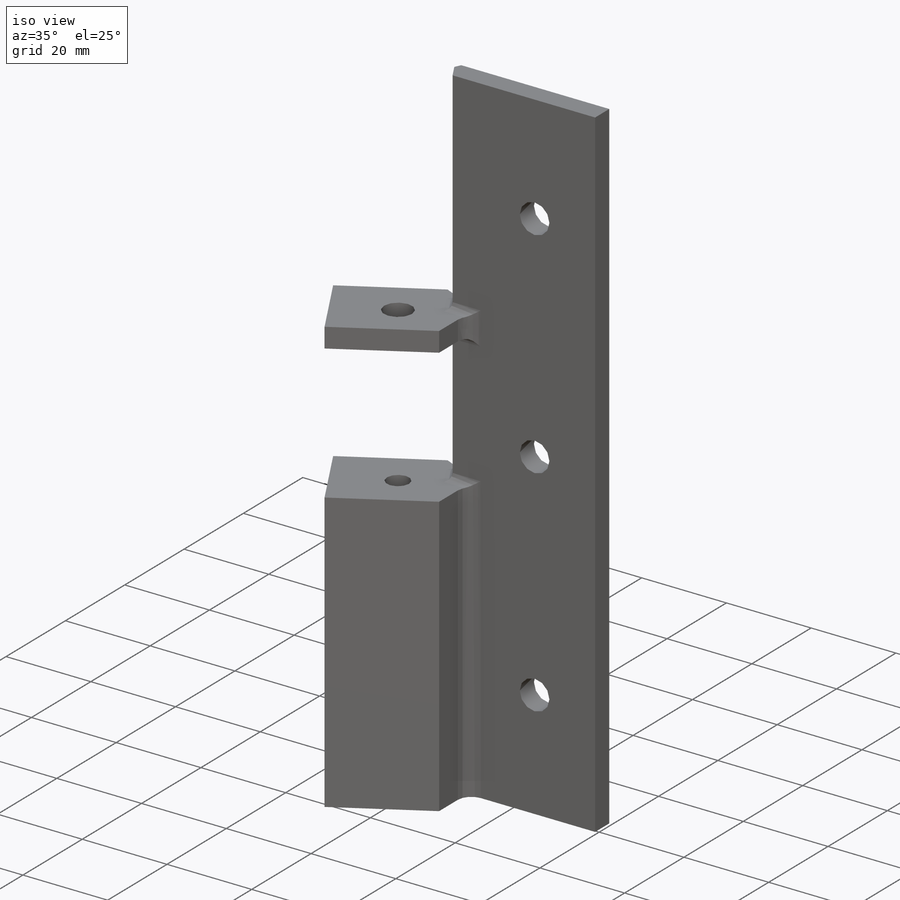
[diagram: iso view]
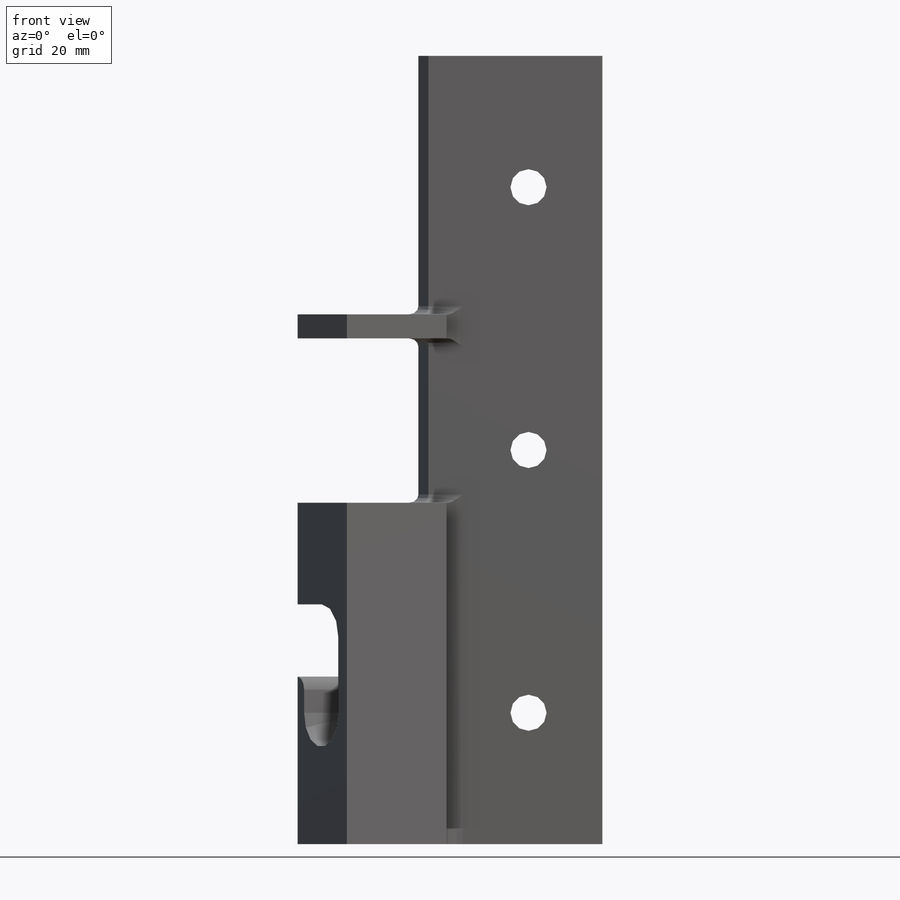
[diagram: front view]
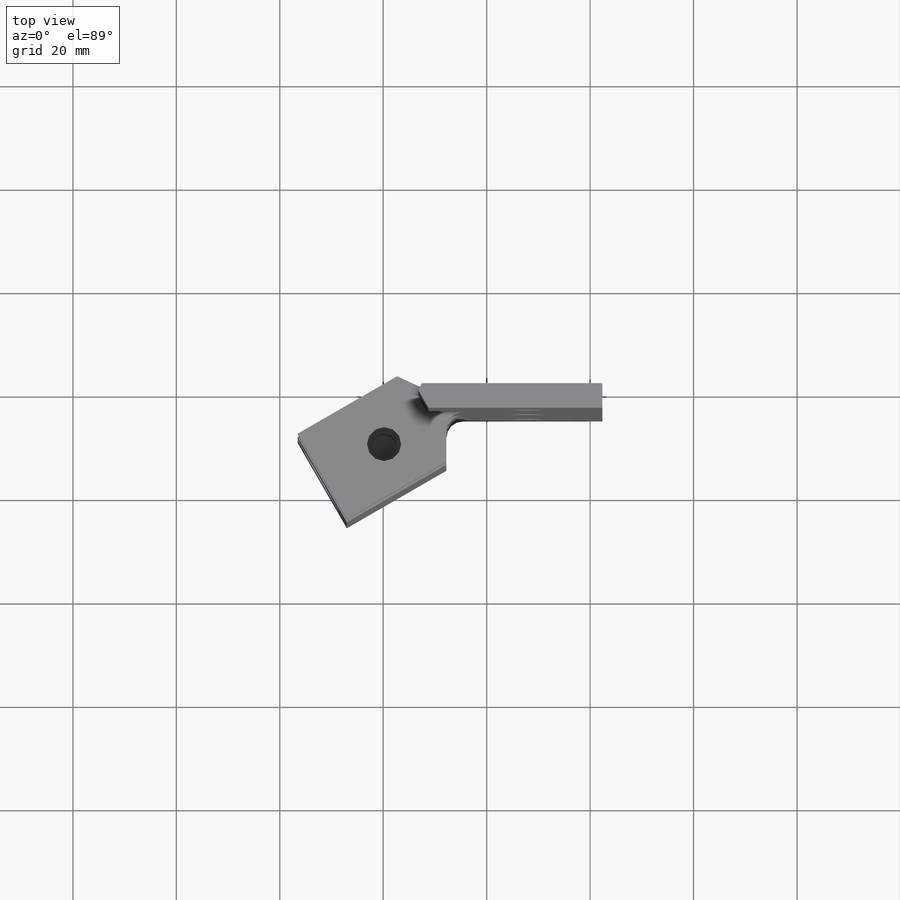
[diagram: top view]
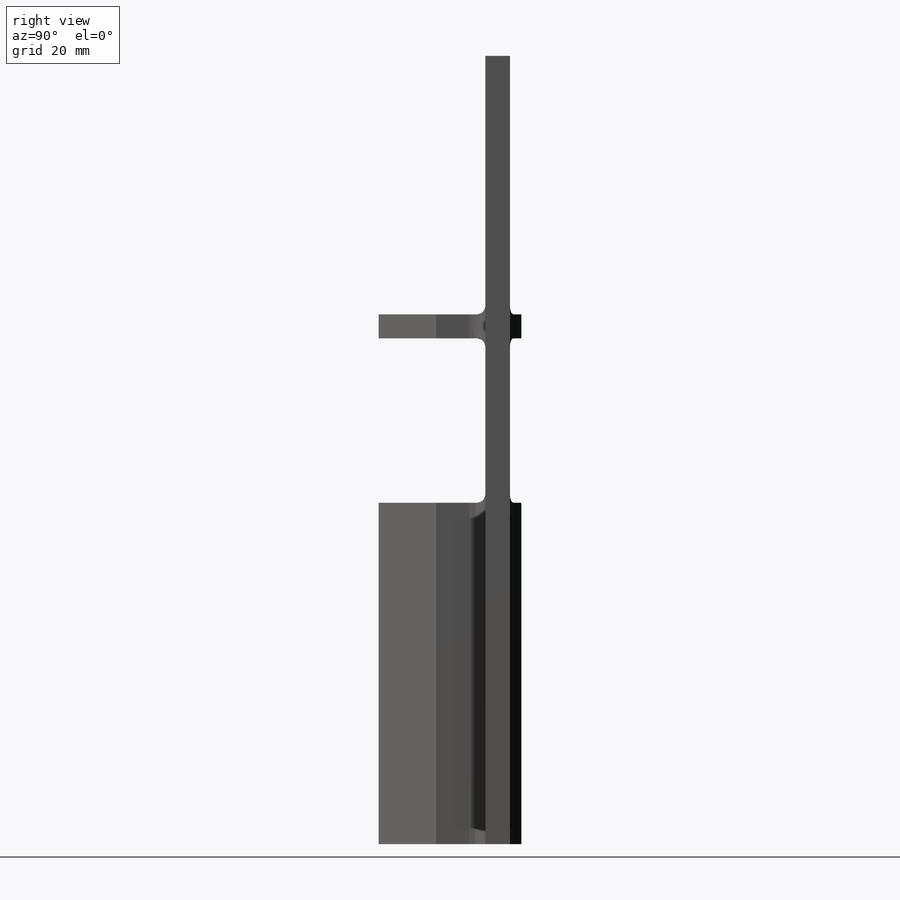
[diagram: right view]
SOLIDWORKS PART (.sldprt)
format: sldprt  version: not decoded by parser v0  size: 606,720 bytes
history: native  units: mm
features: sketch x18, cut_extrude x9, extrude x5, fillet x4, hole x2, plane x2, material x1, move_body x1 (+13 scaffold rows collapsed)
feature tree (55):
  scaffold x13  (default folders/planes/origin — collapsed)
  material  "AISI 304"
  sketch  "Sketch1"  dims[D1=152.4mm D2=34.925mm D3=76.2mm D4=~13.49375mm]
  extrude  "Boss-Extrude1"  Depth=4.7625mm
  sketch  "Sketch2"  dims[D1=152.4mm D2=14.2875mm]
  extrude  "Boss-Extrude2"  Depth=4.7625mm
  hole  "1/4 Clearance Hole1"  Diameter=6.985mm Depth=4.7625mm
  sketch  "Sketch3"  dims[D1=50.8mm D2=50.8mm D3=25.4mm D4=19.05mm D5=19.05mm D6=19.05mm]
  sketch  "Sketch4"  dims[hole-wizard template sketch: 59 standard entries collapsed; hole parameters kept: c18.Thru Hole Dia.=6.985mm c18.Thru Hole Depth=4.7625mm]
  plane  "Plane1"
  sketch  "Sketch5"  dims[D1=19.05mm D2=19.05mm]
  extrude  "Boss-Extrude3"  Depth=15.875mm
  sketch  "Sketch6"
  extrude  "Boss-Extrude4"  [1 undecoded]
  sketch  "Sketch8"  dims[D1=~49.974627mm D2=~15.719304mm]
  cut_extrude  "Cut-Extrude2"  [1 undecoded]
  sketch  "Sketch7"  dims[c1.D3=6.604mm c1.D2=25.4mm c2.D2=30.0deg c2.D4=~7.11515mm c2.D5=~10.100564mm c2.D1=4.7625mm]
  cut_extrude  "Cut-Extrude1"  Depth=4.7625mm
  sketch  "Sketch9"  dims[D1=31.7881mm D2=4.6355mm D3=~15.719304mm]
  cut_extrude  "Cut-Extrude3"  [1 undecoded]
  sketch  "Sketch11"  dims[D1=12.7mm D2=31.7881mm D3=4.6355mm]
  fillet  "Fillet5"  [1 undecoded]
  fillet  "Fillet4"  [1 undecoded]
  cut_extrude  "Cut-Extrude5"  [1 undecoded]
  cut_extrude  "Cut-Extrude9"  [1 undecoded]
  sketch  "Sketch17"
  cut_extrude  "Cut-Extrude8"  [1 undecoded]
  sketch  "Sketch16"  dims[c1.D1=~49.974627mm c1.D2=6.985mm c1.D3=31.7881mm c2.D1=2.54mm c2.D2=1.905mm c2.D3=2.54mm c2.D4=2.54mm c2.D5=~52.529892mm c2.D6=1.905mm c3.D1=1.5875mm]
  fillet  "Fillet2"  [1 undecoded]
  cut_extrude  "Cut-Extrude6"  [1 undecoded]
  sketch  "Sketch12"  dims[c1.D2=6.604mm c1.D5=6.604mm c1.D1=25.4mm c1.D3=13.97mm c1.D4=6.985mm c2.D5=9.144mm c2.D3=6.985mm c2.D4=2.54mm c2.D6=13.97mm c2.D7=15.748mm c2.D1=7.3025mm c3.D1=2.54mm]
  cut_extrude  "Cut-Extrude7"  [1 undecoded]
  sketch  "Sketch15"  dims[c1.D1=~49.974627mm c1.D2=12.7mm c2.D1=1.5875mm c3.D1=3.175mm]
  fillet  "Fillet3"  Radius=6.35mm
  hole  "#5 (0.2055) Diameter Hole1"  Diameter=5.2197mm Depth=11.4808mm
  sketch  "Sketch13"  dims[c1.D1=12.7mm c2.D1=30.0deg c2.D2=8.89mm c3.D1=~17.414327mm c4.D1=30.0deg c4.D2=4.7625mm c4.D3=~7.11515mm c4.D4=~10.100564mm c5.D3=4.7625mm]
  sketch  "Sketch14"  dims[hole-wizard template sketch: 46 standard entries collapsed; hole parameters kept: c15.Hole Dia.=5.2197mm c15.Hole Depth=11.4808mm c15.D3=~14.816244mm c15.Drill Angle=118.0deg]
  plane  "Plane2"  Offset=2.54mm
  move_body  "Body-Move/Copy1"
  sketch  "Sketch18"
  extrude  "Boss-Extrude5"  Depth=6.35mm
  sketch  "Sketch19"  dims[D1=4.7625mm]
  cut_extrude  "Cut-Extrude10"  [1 undecoded]
decode coverage: 23 of 39 modeling features carry decoded parameters
note: ~ marks probable driven/reference dimensions
note: 12 parameter values undecoded
summary: no parameter record found for 12 features
note: suppression state not decoded; provenance and decode notes live in map.json
